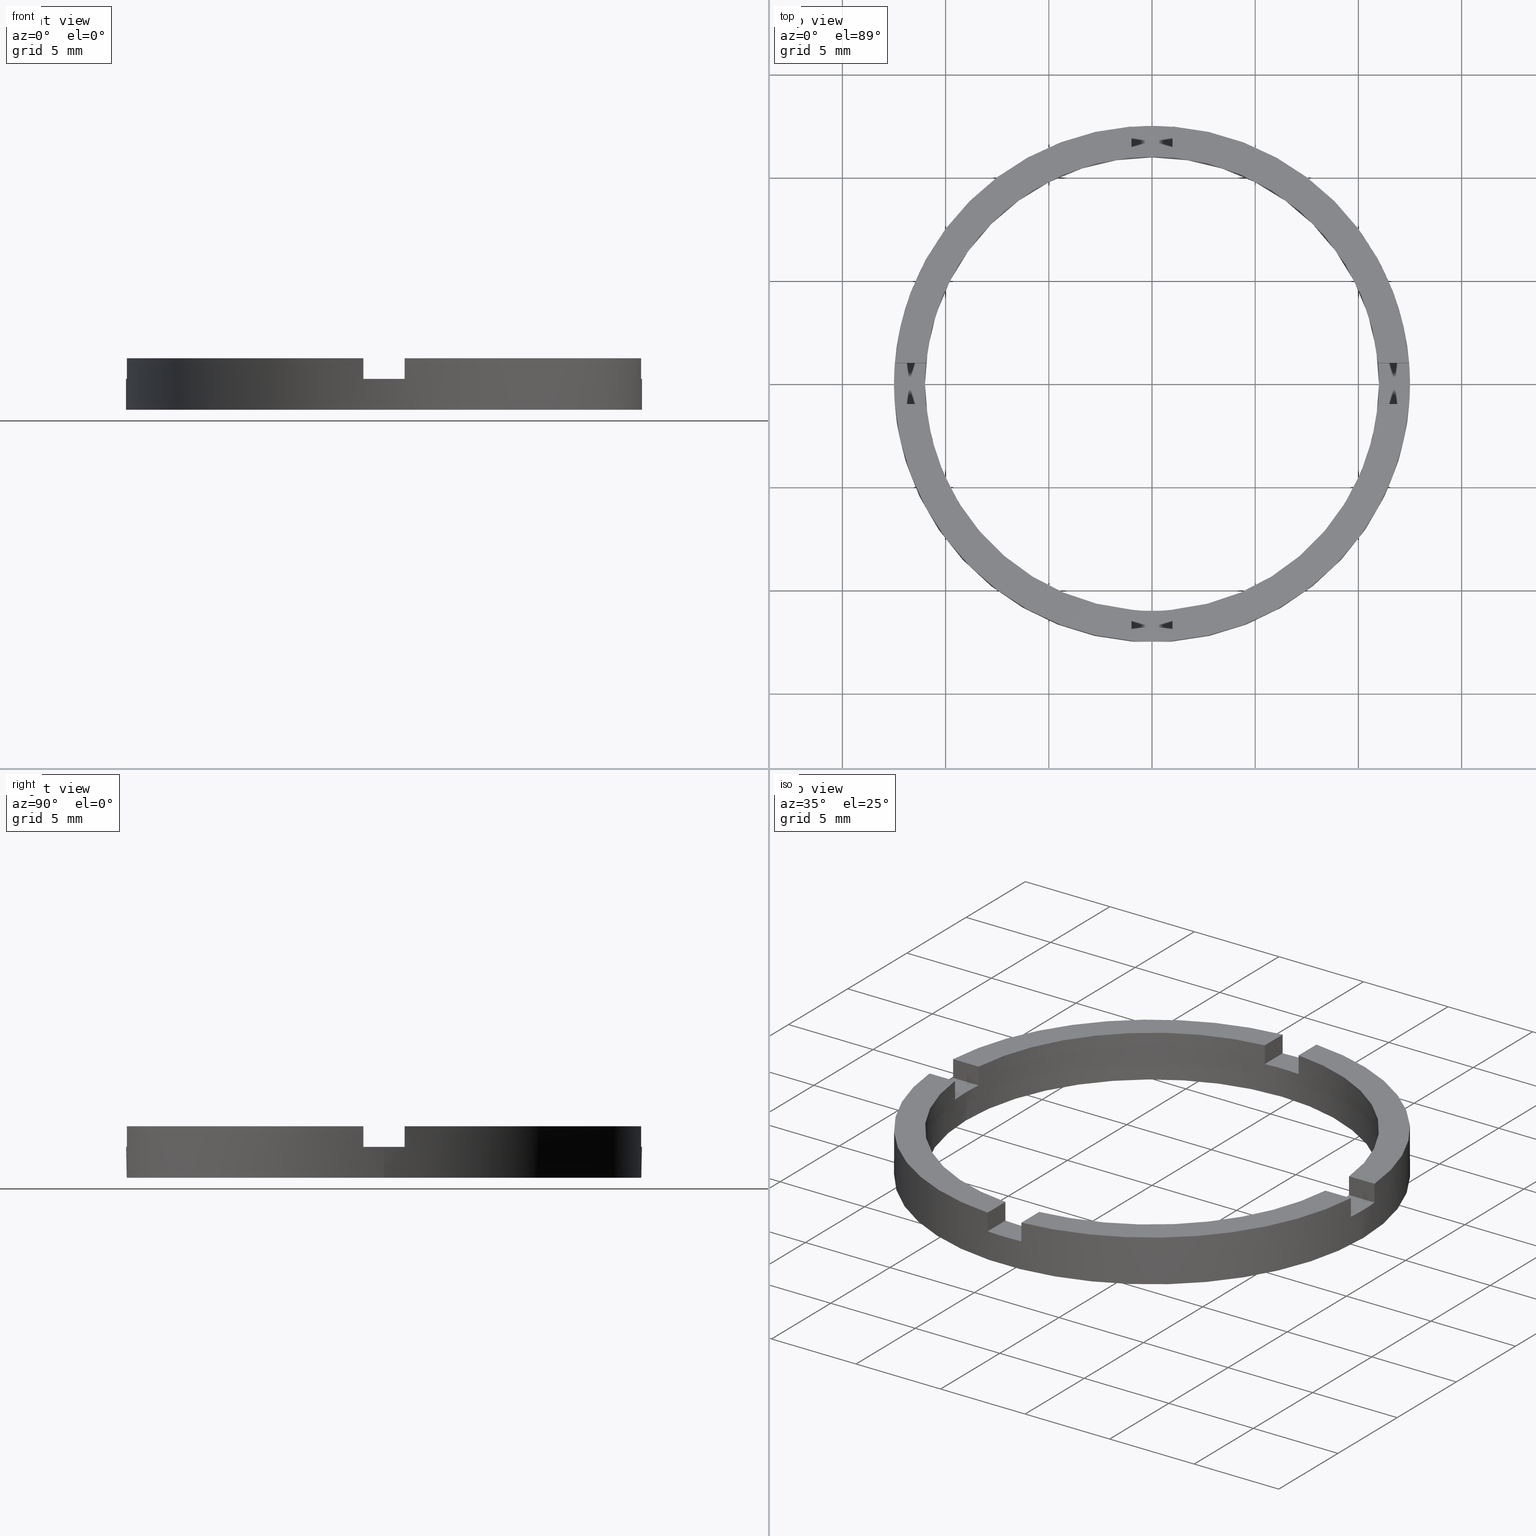
[diagram: canonical four-view strip — front | top / right | iso, engineering-drawing reading convention]
A machine part, canonical four-view strip (front | top / right | iso — engineering-drawing reading convention). The complete STEP part file that produces these views, byte-faithful:
ISO-10303-21;
HEADER;
FILE_DESCRIPTION (( 'STEP AP203' ),
    '1' );
FILE_NAME ('514057.step',
    '2024-12-26T02:33:26',
    ( 'MSI' ),
    ( '' ),
    'SwSTEP 2.0',
    'SolidWorks 2020',
    '' );
FILE_SCHEMA (( 'CONFIG_CONTROL_DESIGN' ));
ENDSEC;

DATA;
#1 = VERTEX_POINT ( 'NONE', #704 ) ;
#2 = DIRECTION ( 'NONE',  ( 1.000000000000000000, 0.000000000000000000, 0.000000000000000000 ) ) ;
#3 = ORIENTED_EDGE ( 'NONE', *, *, #521, .T. ) ;
#4 = CARTESIAN_POINT ( 'NONE',  ( 0.000000000000000000, 0.000000000000000000, 1.500000000000000000 ) ) ;
#5 = CARTESIAN_POINT ( 'NONE',  ( 0.000000000000000000, 0.000000000000000000, 2.500000000000000000 ) ) ;
#6 = EDGE_CURVE ( 'NONE', #419, #145, #127, .T. ) ;
#7 = DIRECTION ( 'NONE',  ( 1.000000000000000000, 0.000000000000000000, 0.000000000000000000 ) ) ;
#8 = DIRECTION ( 'NONE',  ( 1.000000000000000000, 0.000000000000000000, 0.000000000000000000 ) ) ;
#9 = CC_DESIGN_APPROVAL ( #268, ( #579 ) ) ;
#10 = CARTESIAN_POINT ( 'NONE',  ( 0.9999999999999754641, 10.95445115010332415, 2.500000000000000000 ) ) ;
#11 = ADVANCED_FACE ( 'NONE', ( #111 ), #330, .T. ) ;
#12 = CARTESIAN_POINT ( 'NONE',  ( -11.00000000000000000, 0.000000000000000000, 0.000000000000000000 ) ) ;
#13 = PERSON_AND_ORGANIZATION_ROLE ( 'creator' ) ;
#14 = CARTESIAN_POINT ( 'NONE',  ( -12.50000000000000000, 0.000000000000000000, 2.500000000000000000 ) ) ;
#15 = CARTESIAN_POINT ( 'NONE',  ( -10.95445115010332415, 0.9999999999999781286, 1.500000000000000000 ) ) ;
#16 = DIRECTION ( 'NONE',  ( 4.336808689942018352E-17, -1.000000000000000000, 0.000000000000000000 ) ) ;
#17 = EDGE_CURVE ( 'NONE', #233, #364, #672, .T. ) ;
#18 = DATE_TIME_ROLE ( 'classification_date' ) ;
#19 = CARTESIAN_POINT ( 'NONE',  ( -1.000000000000024425, 2.500000000000002220, 1.500000000000000000 ) ) ;
#20 = PERSON ( 'δָ��', 'δָ��', 'δָ��', ('δָ��'), ('δָ��'), ('δָ��') ) ;
#21 = VECTOR ( 'NONE', #69, 1000.000000000000000 ) ;
#22 = PLANE ( 'NONE',  #337 ) ;
#23 = PLANE ( 'NONE',  #696 ) ;
#24 = DIRECTION ( 'NONE',  ( 1.000000000000000000, 0.000000000000000000, -0.000000000000000000 ) ) ;
#25 = CARTESIAN_POINT ( 'NONE',  ( 0.000000000000000000, 0.000000000000000000, 2.500000000000000000 ) ) ;
#26 = EDGE_CURVE ( 'NONE', #216, #480, #639, .T. ) ;
#27 = EDGE_CURVE ( 'NONE', #173, #233, #423, .T. ) ;
#28 = DIRECTION ( 'NONE',  ( 0.000000000000000000, -0.000000000000000000, 1.000000000000000000 ) ) ;
#29 = AXIS2_PLACEMENT_3D ( 'NONE', #725, #247, #613 ) ;
#30 = CARTESIAN_POINT ( 'NONE',  ( 0.000000000000000000, 0.000000000000000000, 1.500000000000000000 ) ) ;
#31 = VECTOR ( 'NONE', #123, 1000.000000000000000 ) ;
#32 = LINE ( 'NONE', #449, #282 ) ;
#33 = CARTESIAN_POINT ( 'NONE',  ( 2.499999999999998668, -1.000000000000160316, 2.500000000000000000 ) ) ;
#34 = LINE ( 'NONE', #558, #21 ) ;
#35 = EDGE_CURVE ( 'NONE', #496, #732, #366, .T. ) ;
#36 = DIRECTION ( 'NONE',  ( -0.000000000000000000, -0.000000000000000000, -1.000000000000000000 ) ) ;
#37 = LINE ( 'NONE', #568, #541 ) ;
#38 = VECTOR ( 'NONE', #308, 1000.000000000000000 ) ;
#39 = VECTOR ( 'NONE', #258, 1000.000000000000000 ) ;
#40 = DIRECTION ( 'NONE',  ( 0.000000000000000000, 0.000000000000000000, 1.000000000000000000 ) ) ;
#41 = SECURITY_CLASSIFICATION ( '', '', #445 ) ;
#42 = FACE_OUTER_BOUND ( 'NONE', #442, .T. ) ;
#43 = DIRECTION ( 'NONE',  ( -0.000000000000000000, -0.000000000000000000, -1.000000000000000000 ) ) ;
#44 = VECTOR ( 'NONE', #190, 1000.000000000000000 ) ;
#45 = DIRECTION ( 'NONE',  ( 0.000000000000000000, -0.000000000000000000, 1.000000000000000000 ) ) ;
#46 = DIRECTION ( 'NONE',  ( 1.000000000000000000, 0.000000000000000000, 0.000000000000000000 ) ) ;
#47 = DIRECTION ( 'NONE',  ( -1.000000000000000000, -1.301042606982605567E-16, 0.000000000000000000 ) ) ;
#48 = DIRECTION ( 'NONE',  ( 1.000000000000000000, 0.000000000000000000, -0.000000000000000000 ) ) ;
#49 = DIRECTION ( 'NONE',  ( 1.000000000000000000, 0.000000000000000000, 0.000000000000000000 ) ) ;
#50 = CARTESIAN_POINT ( 'NONE',  ( 12.45993579437712739, 0.9999999999998402389, 2.500000000000000000 ) ) ;
#51 = PLANE ( 'NONE',  #29 ) ;
#52 = CARTESIAN_POINT ( 'NONE',  ( 0.9999999999998352429, -2.500000000000182521, 1.500000000000000000 ) ) ;
#53 = ADVANCED_FACE ( 'NONE', ( #134 ), #736, .F. ) ;
#54 = DIRECTION ( 'NONE',  ( 0.000000000000000000, 0.000000000000000000, 1.000000000000000000 ) ) ;
#55 = DIRECTION ( 'NONE',  ( 1.000000000000000000, 0.000000000000000000, 0.000000000000000000 ) ) ;
#56 = CARTESIAN_POINT ( 'NONE',  ( 0.000000000000000000, 0.000000000000000000, 0.000000000000000000 ) ) ;
#57 = EDGE_CURVE ( 'NONE', #160, #170, #633, .T. ) ;
#58 = DIRECTION ( 'NONE',  ( -1.000000000000000000, -1.734723475976807341E-16, 0.000000000000000000 ) ) ;
#59 = ADVANCED_FACE ( 'NONE', ( #430 ), #99, .T. ) ;
#60 = PERSON_AND_ORGANIZATION_ROLE ( 'design_supplier' ) ;
#61 = CARTESIAN_POINT ( 'NONE',  ( 12.50000000000000000, 1.530808498934191521E-15, 2.500000000000000000 ) ) ;
#62 = AXIS2_PLACEMENT_3D ( 'NONE', #5, #727, #8 ) ;
#63 = CARTESIAN_POINT ( 'NONE',  ( 10.95445115010330639, -1.000000000000159872, 2.500000000000000000 ) ) ;
#64 = PLANE ( 'NONE',  #347 ) ;
#65 = CARTESIAN_POINT ( 'NONE',  ( -11.00000000000000000, 0.000000000000000000, 2.500000000000000000 ) ) ;
#66 = CC_DESIGN_SECURITY_CLASSIFICATION ( #41, ( #579 ) ) ;
#67 = DIRECTION ( 'NONE',  ( -0.000000000000000000, -0.000000000000000000, -1.000000000000000000 ) ) ;
#68 = DIRECTION ( 'NONE',  ( 1.301042606982605567E-16, -1.000000000000000000, 0.000000000000000000 ) ) ;
#69 = DIRECTION ( 'NONE',  ( -1.000000000000000000, -1.734723475976807341E-16, 0.000000000000000000 ) ) ;
#70 = DIRECTION ( 'NONE',  ( -0.000000000000000000, -0.000000000000000000, -1.000000000000000000 ) ) ;
#71 = AXIS2_PLACEMENT_3D ( 'NONE', #306, #341, #645 ) ;
#72 = DIRECTION ( 'NONE',  ( -0.000000000000000000, -0.000000000000000000, -1.000000000000000000 ) ) ;
#73 = DIRECTION ( 'NONE',  ( 1.000000000000000000, 0.000000000000000000, 0.000000000000000000 ) ) ;
#74 = CARTESIAN_POINT ( 'NONE',  ( -12.45993579437711496, 0.9999999999999779066, 2.500000000000000000 ) ) ;
#75 = CARTESIAN_POINT ( 'NONE',  ( 0.000000000000000000, 0.000000000000000000, 1.500000000000000000 ) ) ;
#76 = CARTESIAN_POINT ( 'NONE',  ( 12.45993579437710075, -1.000000000000159872, 2.500000000000000000 ) ) ;
#77 = CARTESIAN_POINT ( 'NONE',  ( 2.499999999999998668, 0.9999999999998397948, 2.500000000000000000 ) ) ;
#78 = EDGE_CURVE ( 'NONE', #356, #507, #636, .T. ) ;
#79 = DIRECTION ( 'NONE',  ( 0.000000000000000000, 0.000000000000000000, 1.000000000000000000 ) ) ;
#80 = AXIS2_PLACEMENT_3D ( 'NONE', #4, #87, #7 ) ;
#81 = CARTESIAN_POINT ( 'NONE',  ( -10.95445115010332415, 0.9999999999999781286, 2.500000000000000000 ) ) ;
#82 = DIRECTION ( 'NONE',  ( 0.000000000000000000, 0.000000000000000000, 1.000000000000000000 ) ) ;
#83 = AXIS2_PLACEMENT_3D ( 'NONE', #578, #142, #694 ) ;
#84 = CARTESIAN_POINT ( 'NONE',  ( -12.50000000000000000, 0.000000000000000000, 1.500000000000000000 ) ) ;
#85 = EDGE_CURVE ( 'NONE', #699, #496, #657, .T. ) ;
#86 = CARTESIAN_POINT ( 'NONE',  ( -1.000000000000024425, 10.95445115010331882, 2.500000000000000000 ) ) ;
#87 = DIRECTION ( 'NONE',  ( 0.000000000000000000, 0.000000000000000000, 1.000000000000000000 ) ) ;
#88 = ADVANCED_FACE ( 'NONE', ( #162 ), #380, .F. ) ;
#89 = DIRECTION ( 'NONE',  ( -1.301042606982605567E-16, 1.000000000000000000, -0.000000000000000000 ) ) ;
#90 = AXIS2_PLACEMENT_3D ( 'NONE', #193, #343, #271 ) ;
#91 = DIRECTION ( 'NONE',  ( 1.000000000000000000, 0.000000000000000000, 0.000000000000000000 ) ) ;
#92 = ADVANCED_FACE ( 'NONE', ( #402 ), #601, .F. ) ;
#93 = DIRECTION ( 'NONE',  ( 1.000000000000000000, -0.000000000000000000, 0.000000000000000000 ) ) ;
#94 = CARTESIAN_POINT ( 'NONE',  ( 12.45993579437712739, 0.9999999999998402389, 1.500000000000000000 ) ) ;
#95 = EDGE_CURVE ( 'NONE', #145, #235, #653, .T. ) ;
#96 = CIRCLE ( 'NONE', #239, 11.00000000000000000 ) ;
#97 = PLANE ( 'NONE',  #303 ) ;
#98 = CIRCLE ( 'NONE', #122, 12.50000000000000000 ) ;
#99 = PLANE ( 'NONE',  #90 ) ;
#100 = AXIS2_PLACEMENT_3D ( 'NONE', #327, #335, #417 ) ;
#101 = APPROVAL_PERSON_ORGANIZATION ( #124, #182, #518 ) ;
#102 = CIRCLE ( 'NONE', #561, 11.00000000000000000 ) ;
#103 = DATE_AND_TIME ( #658, #363 ) ;
#104 = LINE ( 'NONE', #294, #365 ) ;
#105 = PERSON_AND_ORGANIZATION ( #20, #557 ) ;
#106 = VECTOR ( 'NONE', #290, 1000.000000000000000 ) ;
#107 = ORIENTED_EDGE ( 'NONE', *, *, #543, .F. ) ;
#108 = DIRECTION ( 'NONE',  ( 0.000000000000000000, 0.000000000000000000, 1.000000000000000000 ) ) ;
#109 = CALENDAR_DATE ( 2024, 26, 12 ) ;
#110 = LINE ( 'NONE', #223, #138 ) ;
#111 = FACE_OUTER_BOUND ( 'NONE', #764, .T. ) ;
#112 = DIRECTION ( 'NONE',  ( -0.000000000000000000, -1.000000000000000000, -0.000000000000000000 ) ) ;
#113 = EDGE_CURVE ( 'NONE', #187, #480, #660, .T. ) ;
#114 = CALENDAR_DATE ( 2024, 26, 12 ) ;
#115 = CIRCLE ( 'NONE', #605, 12.50000000000000000 ) ;
#116 = VECTOR ( 'NONE', #70, 1000.000000000000000 ) ;
#117 = APPROVAL_PERSON_ORGANIZATION ( #400, #498, #757 ) ;
#118 = VECTOR ( 'NONE', #43, 1000.000000000000000 ) ;
#119 = DIRECTION ( 'NONE',  ( 0.000000000000000000, 1.000000000000000000, 0.000000000000000000 ) ) ;
#120 = CARTESIAN_POINT ( 'NONE',  ( -2.500000000000186073, 0.9999999999999796829, 1.500000000000000000 ) ) ;
#121 = VECTOR ( 'NONE', #112, 1000.000000000000000 ) ;
#122 = AXIS2_PLACEMENT_3D ( 'NONE', #490, #79, #332 ) ;
#123 = DIRECTION ( 'NONE',  ( 1.000000000000000000, 4.336808689942018352E-17, 0.000000000000000000 ) ) ;
#124 = PERSON_AND_ORGANIZATION ( #20, #557 ) ;
#125 = LINE ( 'NONE', #626, #133 ) ;
#126 = CYLINDRICAL_SURFACE ( 'NONE', #712, 12.50000000000000000 ) ;
#127 = LINE ( 'NONE', #367, #393 ) ;
#128 = EDGE_CURVE ( 'NONE', #356, #768, #141, .T. ) ;
#129 = APPROVAL_PERSON_ORGANIZATION ( #105, #268, #562 ) ;
#130 = FACE_OUTER_BOUND ( 'NONE', #500, .T. ) ;
#131 = VERTEX_POINT ( 'NONE', #221 ) ;
#132 = COORDINATED_UNIVERSAL_TIME_OFFSET ( 8, 0, .AHEAD. ) ;
#133 = VECTOR ( 'NONE', #545, 1000.000000000000000 ) ;
#134 = FACE_OUTER_BOUND ( 'NONE', #516, .T. ) ;
#135 = COORDINATED_UNIVERSAL_TIME_OFFSET ( 8, 0, .AHEAD. ) ;
#136 = LINE ( 'NONE', #52, #404 ) ;
#137 = PERSON_AND_ORGANIZATION ( #20, #557 ) ;
#138 = VECTOR ( 'NONE', #407, 1000.000000000000000 ) ;
#139 = VECTOR ( 'NONE', #697, 1000.000000000000000 ) ;
#140 = VECTOR ( 'NONE', #286, 1000.000000000000000 ) ;
#141 = LINE ( 'NONE', #323, #155 ) ;
#142 = DIRECTION ( 'NONE',  ( -0.000000000000000000, -0.000000000000000000, -1.000000000000000000 ) ) ;
#143 = ORIENTED_EDGE ( 'NONE', *, *, #319, .F. ) ;
#144 = FACE_OUTER_BOUND ( 'NONE', #414, .T. ) ;
#145 = VERTEX_POINT ( 'NONE', #576 ) ;
#146 = CARTESIAN_POINT ( 'NONE',  ( 12.50000000000000000, 1.530808498934191521E-15, 1.500000000000000000 ) ) ;
#147 = AXIS2_PLACEMENT_3D ( 'NONE', #346, #16, #681 ) ;
#148 = LINE ( 'NONE', #713, #153 ) ;
#149 = CYLINDRICAL_SURFACE ( 'NONE', #83, 11.00000000000000000 ) ;
#150 = FACE_OUTER_BOUND ( 'NONE', #200, .T. ) ;
#151 = VECTOR ( 'NONE', #36, 1000.000000000000000 ) ;
#152 = VERTEX_POINT ( 'NONE', #606 ) ;
#153 = VECTOR ( 'NONE', #54, 1000.000000000000000 ) ;
#154 = VECTOR ( 'NONE', #349, 1000.000000000000000 ) ;
#155 = VECTOR ( 'NONE', #72, 1000.000000000000000 ) ;
#156 = ORIENTED_EDGE ( 'NONE', *, *, #283, .T. ) ;
#157 = CYLINDRICAL_SURFACE ( 'NONE', #261, 12.50000000000000000 ) ;
#158 = DIRECTION ( 'NONE',  ( 1.000000000000000000, 1.734723475976807341E-16, -0.000000000000000000 ) ) ;
#159 = ORIENTED_EDGE ( 'NONE', *, *, #608, .F. ) ;
#160 = VERTEX_POINT ( 'NONE', #146 ) ;
#161 = ORIENTED_EDGE ( 'NONE', *, *, #426, .F. ) ;
#162 = FACE_OUTER_BOUND ( 'NONE', #504, .T. ) ;
#163 = ORIENTED_EDGE ( 'NONE', *, *, #739, .F. ) ;
#164 = ORIENTED_EDGE ( 'NONE', *, *, #26, .F. ) ;
#165 = ORIENTED_EDGE ( 'NONE', *, *, #319, .T. ) ;
#166 = CARTESIAN_POINT ( 'NONE',  ( -1.000000000000163647, -12.45993579437710075, 2.500000000000000000 ) ) ;
#167 = ORIENTED_EDGE ( 'NONE', *, *, #701, .T. ) ;
#168 = EDGE_CURVE ( 'NONE', #452, #145, #405, .T. ) ;
#169 = CARTESIAN_POINT ( 'NONE',  ( 0.000000000000000000, 0.000000000000000000, 1.500000000000000000 ) ) ;
#170 = VERTEX_POINT ( 'NONE', #763 ) ;
#171 = VERTEX_POINT ( 'NONE', #607 ) ;
#172 = ORIENTED_EDGE ( 'NONE', *, *, #598, .F. ) ;
#173 = VERTEX_POINT ( 'NONE', #575 ) ;
#174 = DIRECTION ( 'NONE',  ( -1.301042606982605567E-16, 1.000000000000000000, 0.000000000000000000 ) ) ;
#175 = EDGE_CURVE ( 'NONE', #532, #649, #668, .T. ) ;
#176 = ORIENTED_EDGE ( 'NONE', *, *, #314, .T. ) ;
#177 = CARTESIAN_POINT ( 'NONE',  ( 0.9999999999998363531, -10.95445115010333659, 1.500000000000000000 ) ) ;
#178 = ADVANCED_FACE ( 'NONE', ( #642 ), #149, .F. ) ;
#179 = AXIS2_PLACEMENT_3D ( 'NONE', #299, #587, #583 ) ;
#180 = ORIENTED_EDGE ( 'NONE', *, *, #585, .T. ) ;
#181 = PLANE ( 'NONE',  #595 ) ;
#182 = APPROVAL ( #348, 'δָ��' ) ;
#183 = ORIENTED_EDGE ( 'NONE', *, *, #314, .F. ) ;
#184 = APPLICATION_CONTEXT ( 'configuration controlled 3d designs of mechanical parts and assemblies' ) ;
#185 = EDGE_CURVE ( 'NONE', #231, #409, #411, .T. ) ;
#186 = DIRECTION ( 'NONE',  ( -4.336808689942018352E-17, 1.000000000000000000, 0.000000000000000000 ) ) ;
#187 = VERTEX_POINT ( 'NONE', #220 ) ;
#188 = EDGE_LOOP ( 'NONE', ( #263, #470, #266, #714 ) ) ;
#189 = ADVANCED_FACE ( 'NONE', ( #416 ), #157, .T. ) ;
#190 = DIRECTION ( 'NONE',  ( -0.000000000000000000, -0.000000000000000000, -1.000000000000000000 ) ) ;
#191 = FACE_OUTER_BOUND ( 'NONE', #759, .T. ) ;
#192 = DIRECTION ( 'NONE',  ( 0.000000000000000000, 0.000000000000000000, 1.000000000000000000 ) ) ;
#193 = CARTESIAN_POINT ( 'NONE',  ( 0.000000000000000000, 0.000000000000000000, 1.500000000000000000 ) ) ;
#194 = CIRCLE ( 'NONE', #390, 12.50000000000000000 ) ;
#195 = ORIENTED_EDGE ( 'NONE', *, *, #17, .T. ) ;
#196 = VECTOR ( 'NONE', #158, 1000.000000000000000 ) ;
#197 = FACE_OUTER_BOUND ( 'NONE', #378, .T. ) ;
#198 = ORIENTED_EDGE ( 'NONE', *, *, #739, .T. ) ;
#199 = EDGE_CURVE ( 'NONE', #357, #507, #620, .T. ) ;
#200 = EDGE_LOOP ( 'NONE', ( #666, #237, #451, #164 ) ) ;
#201 = ORIENTED_EDGE ( 'NONE', *, *, #78, .F. ) ;
#202 = DIRECTION ( 'NONE',  ( 0.000000000000000000, 0.000000000000000000, 1.000000000000000000 ) ) ;
#203 = ORIENTED_EDGE ( 'NONE', *, *, #85, .F. ) ;
#204 = AXIS2_PLACEMENT_3D ( 'NONE', #265, #311, #345 ) ;
#205 = ORIENTED_EDGE ( 'NONE', *, *, #168, .T. ) ;
#206 = CARTESIAN_POINT ( 'NONE',  ( -1.000000000000024425, 10.95445115010331882, 1.500000000000000000 ) ) ;
#207 = ORIENTED_EDGE ( 'NONE', *, *, #307, .T. ) ;
#208 = CARTESIAN_POINT ( 'NONE',  ( 10.95445115010333659, 0.9999999999998402389, 2.500000000000000000 ) ) ;
#209 = DIRECTION ( 'NONE',  ( 0.000000000000000000, 0.000000000000000000, 1.000000000000000000 ) ) ;
#210 = ORIENTED_EDGE ( 'NONE', *, *, #622, .F. ) ;
#211 = EDGE_CURVE ( 'NONE', #171, #685, #659, .T. ) ;
#212 = ORIENTED_EDGE ( 'NONE', *, *, #128, .F. ) ;
#213 = DESIGN_CONTEXT ( 'detailed design', #433, 'design' ) ;
#214 = ORIENTED_EDGE ( 'NONE', *, *, #57, .T. ) ;
#215 = AXIS2_PLACEMENT_3D ( 'NONE', #289, #538, #48 ) ;
#216 = VERTEX_POINT ( 'NONE', #340 ) ;
#217 = ORIENTED_EDGE ( 'NONE', *, *, #352, .F. ) ;
#218 = CARTESIAN_POINT ( 'NONE',  ( 0.000000000000000000, 0.000000000000000000, 2.500000000000000000 ) ) ;
#219 = ORIENTED_EDGE ( 'NONE', *, *, #227, .T. ) ;
#220 = CARTESIAN_POINT ( 'NONE',  ( -1.000000000000163647, -10.95445115010330639, 2.500000000000000000 ) ) ;
#221 = CARTESIAN_POINT ( 'NONE',  ( 0.9999999999999754641, 10.95445115010332415, 1.500000000000000000 ) ) ;
#222 = ORIENTED_EDGE ( 'NONE', *, *, #274, .F. ) ;
#223 = CARTESIAN_POINT ( 'NONE',  ( -12.45993579437711141, -1.000000000000022204, 2.500000000000000000 ) ) ;
#224 = ORIENTED_EDGE ( 'NONE', *, *, #486, .T. ) ;
#225 = CARTESIAN_POINT ( 'NONE',  ( 0.000000000000000000, 0.000000000000000000, 1.500000000000000000 ) ) ;
#226 = CC_DESIGN_DATE_AND_TIME_ASSIGNMENT ( #630, #553, ( #278 ) ) ;
#227 = EDGE_CURVE ( 'NONE', #525, #756, #415, .T. ) ;
#228 = VERTEX_POINT ( 'NONE', #556 ) ;
#229 = ORIENTED_EDGE ( 'NONE', *, *, #503, .F. ) ;
#230 = PLANE ( 'NONE',  #215 ) ;
#231 = VERTEX_POINT ( 'NONE', #675 ) ;
#232 = DIRECTION ( 'NONE',  ( 0.000000000000000000, 0.000000000000000000, 1.000000000000000000 ) ) ;
#233 = VERTEX_POINT ( 'NONE', #63 ) ;
#234 = ORIENTED_EDGE ( 'NONE', *, *, #85, .T. ) ;
#235 = VERTEX_POINT ( 'NONE', #206 ) ;
#236 = CARTESIAN_POINT ( 'NONE',  ( -12.45993579437711496, 0.9999999999999779066, 1.500000000000000000 ) ) ;
#237 = ORIENTED_EDGE ( 'NONE', *, *, #570, .T. ) ;
#238 = CARTESIAN_POINT ( 'NONE',  ( 0.9999999999999754641, 12.45993579437711674, 1.500000000000000000 ) ) ;
#239 = AXIS2_PLACEMENT_3D ( 'NONE', #698, #232, #49 ) ;
#240 = ADVANCED_FACE ( 'NONE', ( #648 ), #22, .F. ) ;
#241 = ORIENTED_EDGE ( 'NONE', *, *, #284, .F. ) ;
#242 = ORIENTED_EDGE ( 'NONE', *, *, #175, .F. ) ;
#243 = DIRECTION ( 'NONE',  ( 0.000000000000000000, 0.000000000000000000, 1.000000000000000000 ) ) ;
#244 = PLANE ( 'NONE',  #410 ) ;
#245 = ORIENTED_EDGE ( 'NONE', *, *, #128, .T. ) ;
#246 = ORIENTED_EDGE ( 'NONE', *, *, #754, .F. ) ;
#247 = DIRECTION ( 'NONE',  ( -1.000000000000000000, 0.000000000000000000, 0.000000000000000000 ) ) ;
#248 = EDGE_CURVE ( 'NONE', #677, #152, #406, .T. ) ;
#249 = ADVANCED_FACE ( 'NONE', ( #373 ), #126, .T. ) ;
#250 = EDGE_CURVE ( 'NONE', #515, #464, #652, .T. ) ;
#251 = ORIENTED_EDGE ( 'NONE', *, *, #703, .F. ) ;
#252 = MECHANICAL_CONTEXT ( 'NONE', #184, 'mechanical' ) ;
#253 = CARTESIAN_POINT ( 'NONE',  ( 0.000000000000000000, 0.000000000000000000, 2.500000000000000000 ) ) ;
#254 = ORIENTED_EDGE ( 'NONE', *, *, #585, .F. ) ;
#255 = ORIENTED_EDGE ( 'NONE', *, *, #592, .F. ) ;
#256 = DIRECTION ( 'NONE',  ( -0.000000000000000000, -0.000000000000000000, -1.000000000000000000 ) ) ;
#257 = ORIENTED_EDGE ( 'NONE', *, *, #211, .F. ) ;
#258 = DIRECTION ( 'NONE',  ( -0.000000000000000000, -1.000000000000000000, -0.000000000000000000 ) ) ;
#259 = VERTEX_POINT ( 'NONE', #443 ) ;
#260 = CARTESIAN_POINT ( 'NONE',  ( 10.95445115010330639, -1.000000000000159872, 1.500000000000000000 ) ) ;
#261 = AXIS2_PLACEMENT_3D ( 'NONE', #324, #770, #458 ) ;
#262 = ADVANCED_FACE ( 'NONE', ( #130 ), #760, .T. ) ;
#263 = ORIENTED_EDGE ( 'NONE', *, *, #17, .F. ) ;
#264 = DIRECTION ( 'NONE',  ( 1.000000000000000000, 1.734723475976807341E-16, 0.000000000000000000 ) ) ;
#265 = CARTESIAN_POINT ( 'NONE',  ( 0.000000000000000000, 0.000000000000000000, 0.000000000000000000 ) ) ;
#266 = ORIENTED_EDGE ( 'NONE', *, *, #537, .F. ) ;
#267 = ORIENTED_EDGE ( 'NONE', *, *, #724, .F. ) ;
#268 = APPROVAL ( #669, 'δָ��' ) ;
#269 = AXIS2_PLACEMENT_3D ( 'NONE', #662, #186, #748 ) ;
#270 =( LENGTH_UNIT ( ) NAMED_UNIT ( * ) SI_UNIT ( .MILLI., .METRE. ) );
#271 = DIRECTION ( 'NONE',  ( 1.000000000000000000, 0.000000000000000000, -0.000000000000000000 ) ) ;
#272 = DIRECTION ( 'NONE',  ( 1.734723475976807341E-16, -1.000000000000000000, 0.000000000000000000 ) ) ;
#273 = CARTESIAN_POINT ( 'NONE',  ( 0.000000000000000000, 0.000000000000000000, 2.500000000000000000 ) ) ;
#274 = EDGE_CURVE ( 'NONE', #677, #480, #674, .T. ) ;
#275 = CARTESIAN_POINT ( 'NONE',  ( -1.000000000000024425, 10.95445115010331882, 2.500000000000000000 ) ) ;
#276 = DIRECTION ( 'NONE',  ( 0.000000000000000000, 0.000000000000000000, 1.000000000000000000 ) ) ;
#277 = AXIS2_PLACEMENT_3D ( 'NONE', #297, #336, #55 ) ;
#278 = PRODUCT_DEFINITION ( 'δ֪', '', #579, #213 ) ;
#279 = LINE ( 'NONE', #508, #31 ) ;
#280 = CARTESIAN_POINT ( 'NONE',  ( -1.000000000000163647, -12.45993579437710075, 2.500000000000000000 ) ) ;
#281 = CARTESIAN_POINT ( 'NONE',  ( -1.000000000000164757, -2.500000000000182521, 1.500000000000000000 ) ) ;
#282 = VECTOR ( 'NONE', #597, 1000.000000000000000 ) ;
#283 = EDGE_CURVE ( 'NONE', #409, #464, #136, .T. ) ;
#284 = EDGE_CURVE ( 'NONE', #752, #171, #671, .T. ) ;
#285 = PLANE ( 'NONE',  #100 ) ;
#286 = DIRECTION ( 'NONE',  ( -0.000000000000000000, -0.000000000000000000, -1.000000000000000000 ) ) ;
#287 = MANIFOLD_SOLID_BREP ( '�г�-����1', #530 ) ;
#288 = AXIS2_PLACEMENT_3D ( 'NONE', #778, #631, #394 ) ;
#289 = CARTESIAN_POINT ( 'NONE',  ( 0.000000000000000000, 0.000000000000000000, 2.500000000000000000 ) ) ;
#290 = DIRECTION ( 'NONE',  ( -1.301042606982605567E-16, 1.000000000000000000, -0.000000000000000000 ) ) ;
#291 = LINE ( 'NONE', #735, #555 ) ;
#292 = FACE_OUTER_BOUND ( 'NONE', #188, .T. ) ;
#293 = EDGE_CURVE ( 'NONE', #231, #364, #398, .T. ) ;
#294 = CARTESIAN_POINT ( 'NONE',  ( 12.45993579437710075, -1.000000000000159872, 2.500000000000000000 ) ) ;
#295 = DIRECTION ( 'NONE',  ( 0.000000000000000000, 0.000000000000000000, 1.000000000000000000 ) ) ;
#296 = LINE ( 'NONE', #448, #44 ) ;
#297 = CARTESIAN_POINT ( 'NONE',  ( 0.000000000000000000, 0.000000000000000000, 1.500000000000000000 ) ) ;
#298 = LINE ( 'NONE', #596, #565 ) ;
#299 = CARTESIAN_POINT ( 'NONE',  ( 0.000000000000000000, 0.000000000000000000, 1.500000000000000000 ) ) ;
#300 = LINE ( 'NONE', #120, #302 ) ;
#301 = CARTESIAN_POINT ( 'NONE',  ( 0.9999999999998352429, -2.500000000000182521, 2.500000000000000000 ) ) ;
#302 = VECTOR ( 'NONE', #58, 1000.000000000000000 ) ;
#303 = AXIS2_PLACEMENT_3D ( 'NONE', #56, #192, #342 ) ;
#304 = CARTESIAN_POINT ( 'NONE',  ( -10.95445115010331882, -1.000000000000021982, 1.500000000000000000 ) ) ;
#305 = ADVANCED_FACE ( 'NONE', ( #150 ), #765, .F. ) ;
#306 = CARTESIAN_POINT ( 'NONE',  ( 0.000000000000000000, 0.000000000000000000, 2.500000000000000000 ) ) ;
#307 = EDGE_CURVE ( 'NONE', #160, #768, #388, .T. ) ;
#308 = DIRECTION ( 'NONE',  ( -1.000000000000000000, -4.336808689942018352E-17, -0.000000000000000000 ) ) ;
#309 = ADVANCED_BREP_SHAPE_REPRESENTATION ( '514057', ( #287, #204 ), #777 ) ;
#310 = CARTESIAN_POINT ( 'NONE',  ( 0.000000000000000000, 0.000000000000000000, 2.500000000000000000 ) ) ;
#311 = DIRECTION ( 'NONE',  ( 0.000000000000000000, 0.000000000000000000, 1.000000000000000000 ) ) ;
#312 = CARTESIAN_POINT ( 'NONE',  ( 11.00000000000000000, 1.347111479062088405E-15, 2.500000000000000000 ) ) ;
#313 = DIRECTION ( 'NONE',  ( -0.000000000000000000, -0.000000000000000000, -1.000000000000000000 ) ) ;
#314 = EDGE_CURVE ( 'NONE', #173, #464, #392, .T. ) ;
#315 = CARTESIAN_POINT ( 'NONE',  ( -12.50000000000000000, 0.000000000000000000, 0.000000000000000000 ) ) ;
#316 = CARTESIAN_POINT ( 'NONE',  ( -1.000000000000164757, -2.500000000000182521, 2.500000000000000000 ) ) ;
#317 = AXIS2_PLACEMENT_3D ( 'NONE', #493, #548, #544 ) ;
#318 = PRODUCT_RELATED_PRODUCT_CATEGORY ( 'detail', '', ( #462 ) ) ;
#319 = EDGE_CURVE ( 'NONE', #677, #1, #110, .T. ) ;
#320 = DIRECTION ( 'NONE',  ( 1.000000000000000000, 0.000000000000000000, 0.000000000000000000 ) ) ;
#321 = PRODUCT_DEFINITION_SHAPE ( 'NONE', 'NONE',  #278 ) ;
#322 = UNCERTAINTY_MEASURE_WITH_UNIT (LENGTH_MEASURE( 1.000000000000000082E-05 ), #270, 'distance_accuracy_value', 'NONE');
#323 = CARTESIAN_POINT ( 'NONE',  ( 12.45993579437712739, 0.9999999999998402389, 2.500000000000000000 ) ) ;
#324 = CARTESIAN_POINT ( 'NONE',  ( 0.000000000000000000, 0.000000000000000000, 2.500000000000000000 ) ) ;
#325 = EDGE_CURVE ( 'NONE', #228, #160, #664, .T. ) ;
#326 = DIRECTION ( 'NONE',  ( 1.000000000000000000, 0.000000000000000000, 0.000000000000000000 ) ) ;
#327 = CARTESIAN_POINT ( 'NONE',  ( -2.500000000000186073, 0.9999999999999796829, 1.500000000000000000 ) ) ;
#328 = PLANE ( 'NONE',  #744 ) ;
#329 = EDGE_CURVE ( 'NONE', #444, #235, #632, .T. ) ;
#330 = PLANE ( 'NONE',  #762 ) ;
#331 = CARTESIAN_POINT ( 'NONE',  ( -1.000000000000163647, -10.95445115010330639, 2.500000000000000000 ) ) ;
#332 = DIRECTION ( 'NONE',  ( 1.000000000000000000, 0.000000000000000000, 0.000000000000000000 ) ) ;
#333 = CARTESIAN_POINT ( 'NONE',  ( 0.9999999999998352429, -2.500000000000182521, 1.500000000000000000 ) ) ;
#334 = ADVANCED_FACE ( 'NONE', ( #641 ), #328, .T. ) ;
#335 = DIRECTION ( 'NONE',  ( -1.734723475976807341E-16, 1.000000000000000000, 0.000000000000000000 ) ) ;
#336 = DIRECTION ( 'NONE',  ( 0.000000000000000000, 0.000000000000000000, 1.000000000000000000 ) ) ;
#337 = AXIS2_PLACEMENT_3D ( 'NONE', #506, #272, #264 ) ;
#338 = DIRECTION ( 'NONE',  ( 0.000000000000000000, 0.000000000000000000, 1.000000000000000000 ) ) ;
#339 = PERSON_AND_ORGANIZATION_ROLE ( 'design_owner' ) ;
#340 = CARTESIAN_POINT ( 'NONE',  ( -1.000000000000163647, -12.45993579437710075, 1.500000000000000000 ) ) ;
#341 = DIRECTION ( 'NONE',  ( 0.000000000000000000, 0.000000000000000000, 1.000000000000000000 ) ) ;
#342 = DIRECTION ( 'NONE',  ( 1.000000000000000000, 0.000000000000000000, -0.000000000000000000 ) ) ;
#343 = DIRECTION ( 'NONE',  ( 0.000000000000000000, 0.000000000000000000, 1.000000000000000000 ) ) ;
#344 = CARTESIAN_POINT ( 'NONE',  ( 0.000000000000000000, 0.000000000000000000, 1.500000000000000000 ) ) ;
#345 = DIRECTION ( 'NONE',  ( 1.000000000000000000, 0.000000000000000000, 0.000000000000000000 ) ) ;
#346 = CARTESIAN_POINT ( 'NONE',  ( 2.499999999999998668, -1.000000000000160316, 1.500000000000000000 ) ) ;
#347 = AXIS2_PLACEMENT_3D ( 'NONE', #524, #202, #24 ) ;
#348 = APPROVAL_STATUS ( 'not_yet_approved' ) ;
#349 = DIRECTION ( 'NONE',  ( 1.301042606982605567E-16, -1.000000000000000000, 0.000000000000000000 ) ) ;
#350 = DIRECTION ( 'NONE',  ( 1.000000000000000000, 0.000000000000000000, 0.000000000000000000 ) ) ;
#351 = EDGE_LOOP ( 'NONE', ( #670, #207, #167, #682, #203, #460 ) ) ;
#352 = EDGE_CURVE ( 'NONE', #756, #170, #115, .T. ) ;
#353 = CARTESIAN_POINT ( 'NONE',  ( 11.00000000000000000, 1.347111479062088405E-15, 0.000000000000000000 ) ) ;
#354 = CARTESIAN_POINT ( 'NONE',  ( 0.000000000000000000, 0.000000000000000000, 2.500000000000000000 ) ) ;
#355 = AXIS2_PLACEMENT_3D ( 'NONE', #344, #564, #350 ) ;
#356 = VERTEX_POINT ( 'NONE', #50 ) ;
#357 = VERTEX_POINT ( 'NONE', #10 ) ;
#358 = CIRCLE ( 'NONE', #655, 11.00000000000000000 ) ;
#359 = CARTESIAN_POINT ( 'NONE',  ( 0.9999999999998363531, -12.45993579437712739, 2.500000000000000000 ) ) ;
#360 = LINE ( 'NONE', #77, #617 ) ;
#361 = LOCAL_TIME ( 10, 33, 26.00000000000000000, #391 ) ;
#362 = VECTOR ( 'NONE', #540, 1000.000000000000000 ) ;
#363 = LOCAL_TIME ( 10, 33, 26.00000000000000000, #135 ) ;
#364 = VERTEX_POINT ( 'NONE', #76 ) ;
#365 = VECTOR ( 'NONE', #40, 1000.000000000000000 ) ;
#366 = LINE ( 'NONE', #312, #374 ) ;
#367 = CARTESIAN_POINT ( 'NONE',  ( -1.000000000000024425, 12.45993579437711141, 2.500000000000000000 ) ) ;
#368 = LOCAL_TIME ( 10, 33, 26.00000000000000000, #654 ) ;
#369 = CIRCLE ( 'NONE', #80, 11.00000000000000000 ) ;
#370 = ORIENTED_EDGE ( 'NONE', *, *, #690, .T. ) ;
#371 = CC_DESIGN_PERSON_AND_ORGANIZATION_ASSIGNMENT ( #638, #60, ( #579 ) ) ;
#372 = LOCAL_TIME ( 10, 33, 26.00000000000000000, #627 ) ;
#373 = FACE_OUTER_BOUND ( 'NONE', #700, .T. ) ;
#374 = VECTOR ( 'NONE', #519, 1000.000000000000000 ) ;
#375 = EDGE_CURVE ( 'NONE', #532, #525, #663, .T. ) ;
#376 = DATE_AND_TIME ( #114, #372 ) ;
#377 = LINE ( 'NONE', #331, #628 ) ;
#378 = EDGE_LOOP ( 'NONE', ( #774, #523, #421, #242 ) ) ;
#379 = LINE ( 'NONE', #705, #196 ) ;
#380 = CYLINDRICAL_SURFACE ( 'NONE', #580, 11.00000000000000000 ) ;
#381 = DIRECTION ( 'NONE',  ( 1.000000000000000000, 0.000000000000000000, 0.000000000000000000 ) ) ;
#382 = PERSON_AND_ORGANIZATION ( #20, #557 ) ;
#383 = VECTOR ( 'NONE', #256, 1000.000000000000000 ) ;
#384 = VECTOR ( 'NONE', #276, 1000.000000000000000 ) ;
#385 = SHAPE_DEFINITION_REPRESENTATION ( #321, #309 ) ;
#386 = VECTOR ( 'NONE', #119, 1000.000000000000000 ) ;
#387 = EDGE_LOOP ( 'NONE', ( #693, #389, #180, #107, #241, #370 ) ) ;
#388 = CIRCLE ( 'NONE', #572, 12.50000000000000000 ) ;
#389 = ORIENTED_EDGE ( 'NONE', *, *, #467, .T. ) ;
#390 = AXIS2_PLACEMENT_3D ( 'NONE', #718, #610, #547 ) ;
#391 = COORDINATED_UNIVERSAL_TIME_OFFSET ( 8, 0, .AHEAD. ) ;
#392 = LINE ( 'NONE', #396, #118 ) ;
#393 = VECTOR ( 'NONE', #769, 1000.000000000000000 ) ;
#394 = DIRECTION ( 'NONE',  ( 1.000000000000000000, 0.000000000000000000, 0.000000000000000000 ) ) ;
#395 = DATE_AND_TIME ( #644, #623 ) ;
#396 = CARTESIAN_POINT ( 'NONE',  ( 0.9999999999998363531, -10.95445115010333659, 2.500000000000000000 ) ) ;
#397 = PERSON_AND_ORGANIZATION ( #20, #557 ) ;
#398 = CIRCLE ( 'NONE', #317, 12.50000000000000000 ) ;
#399 = ORIENTED_EDGE ( 'NONE', *, *, #185, .F. ) ;
#400 = PERSON_AND_ORGANIZATION ( #20, #557 ) ;
#401 = CIRCLE ( 'NONE', #469, 11.00000000000000000 ) ;
#402 = FACE_OUTER_BOUND ( 'NONE', #629, .T. ) ;
#403 = EDGE_CURVE ( 'NONE', #444, #259, #401, .T. ) ;
#404 = VECTOR ( 'NONE', #89, 1000.000000000000000 ) ;
#405 = CIRCLE ( 'NONE', #678, 12.50000000000000000 ) ;
#406 = LINE ( 'NONE', #751, #667 ) ;
#407 = DIRECTION ( 'NONE',  ( -0.000000000000000000, -0.000000000000000000, -1.000000000000000000 ) ) ;
#408 = FACE_OUTER_BOUND ( 'NONE', #740, .T. ) ;
#409 = VERTEX_POINT ( 'NONE', #594 ) ;
#410 = AXIS2_PLACEMENT_3D ( 'NONE', #225, #45, #477 ) ;
#411 = LINE ( 'NONE', #359, #151 ) ;
#412 = CARTESIAN_POINT ( 'NONE',  ( 0.000000000000000000, 0.000000000000000000, 1.500000000000000000 ) ) ;
#413 = CC_DESIGN_PERSON_AND_ORGANIZATION_ASSIGNMENT ( #137, #511, ( #278 ) ) ;
#414 = EDGE_LOOP ( 'NONE', ( #205, #728, #468, #198 ) ) ;
#415 = LINE ( 'NONE', #14, #635 ) ;
#416 = FACE_OUTER_BOUND ( 'NONE', #738, .T. ) ;
#417 = DIRECTION ( 'NONE',  ( -1.000000000000000000, -1.734723475976807341E-16, 0.000000000000000000 ) ) ;
#418 = FACE_OUTER_BOUND ( 'NONE', #723, .T. ) ;
#419 = VERTEX_POINT ( 'NONE', #782 ) ;
#420 = ADVANCED_FACE ( 'NONE', ( #144 ), #244, .T. ) ;
#421 = ORIENTED_EDGE ( 'NONE', *, *, #754, .T. ) ;
#422 = ORIENTED_EDGE ( 'NONE', *, *, #647, .T. ) ;
#423 = CIRCLE ( 'NONE', #549, 11.00000000000000000 ) ;
#424 = EDGE_CURVE ( 'NONE', #170, #756, #98, .T. ) ;
#425 = CARTESIAN_POINT ( 'NONE',  ( 0.000000000000000000, 0.000000000000000000, 2.500000000000000000 ) ) ;
#426 = EDGE_CURVE ( 'NONE', #699, #233, #125, .T. ) ;
#427 = ORIENTED_EDGE ( 'NONE', *, *, #766, .F. ) ;
#428 = VECTOR ( 'NONE', #582, 1000.000000000000000 ) ;
#429 = DIRECTION ( 'NONE',  ( 1.000000000000000000, 1.301042606982605567E-16, 0.000000000000000000 ) ) ;
#430 = FACE_OUTER_BOUND ( 'NONE', #351, .T. ) ;
#431 = AXIS2_PLACEMENT_3D ( 'NONE', #30, #586, #73 ) ;
#432 = ORIENTED_EDGE ( 'NONE', *, *, #766, .T. ) ;
#433 = APPLICATION_CONTEXT ( 'configuration controlled 3d designs of mechanical parts and assemblies' ) ;
#434 = ORIENTED_EDGE ( 'NONE', *, *, #78, .T. ) ;
#435 = DIRECTION ( 'NONE',  ( 1.000000000000000000, 0.000000000000000000, 0.000000000000000000 ) ) ;
#436 = ADVANCED_FACE ( 'NONE', ( #408 ), #230, .T. ) ;
#437 = ORIENTED_EDGE ( 'NONE', *, *, #503, .T. ) ;
#438 = AXIS2_PLACEMENT_3D ( 'NONE', #354, #441, #455 ) ;
#439 = ORIENTED_EDGE ( 'NONE', *, *, #703, .T. ) ;
#440 = ORIENTED_EDGE ( 'NONE', *, *, #35, .F. ) ;
#441 = DIRECTION ( 'NONE',  ( 0.000000000000000000, 0.000000000000000000, 1.000000000000000000 ) ) ;
#442 = EDGE_LOOP ( 'NONE', ( #163, #437, #684, #689 ) ) ;
#443 = CARTESIAN_POINT ( 'NONE',  ( -10.95445115010332415, 0.9999999999999781286, 2.500000000000000000 ) ) ;
#444 = VERTEX_POINT ( 'NONE', #86 ) ;
#445 = SECURITY_CLASSIFICATION_LEVEL ( 'unclassified' ) ;
#446 = ORIENTED_EDGE ( 'NONE', *, *, #591, .T. ) ;
#447 = DIRECTION ( 'NONE',  ( 1.000000000000000000, 1.734723475976807341E-16, -0.000000000000000000 ) ) ;
#448 = CARTESIAN_POINT ( 'NONE',  ( 10.95445115010333659, 0.9999999999998402389, 2.500000000000000000 ) ) ;
#449 = CARTESIAN_POINT ( 'NONE',  ( 0.9999999999999754641, 12.45993579437711674, 2.500000000000000000 ) ) ;
#450 = ORIENTED_EDGE ( 'NONE', *, *, #403, .F. ) ;
#451 = ORIENTED_EDGE ( 'NONE', *, *, #113, .T. ) ;
#452 = VERTEX_POINT ( 'NONE', #238 ) ;
#453 = ORIENTED_EDGE ( 'NONE', *, *, #250, .T. ) ;
#454 = DIRECTION ( 'NONE',  ( -0.000000000000000000, -0.000000000000000000, -1.000000000000000000 ) ) ;
#455 = DIRECTION ( 'NONE',  ( 1.000000000000000000, 0.000000000000000000, 0.000000000000000000 ) ) ;
#456 = ORIENTED_EDGE ( 'NONE', *, *, #514, .F. ) ;
#457 = CIRCLE ( 'NONE', #288, 11.00000000000000000 ) ;
#458 = DIRECTION ( 'NONE',  ( -1.000000000000000000, 0.000000000000000000, 0.000000000000000000 ) ) ;
#459 = EDGE_CURVE ( 'NONE', #131, #235, #102, .T. ) ;
#460 = ORIENTED_EDGE ( 'NONE', *, *, #724, .T. ) ;
#461 = ORIENTED_EDGE ( 'NONE', *, *, #592, .T. ) ;
#462 = PRODUCT ( '514057', '514057', '', ( #252 ) ) ;
#463 = ORIENTED_EDGE ( 'NONE', *, *, #6, .F. ) ;
#464 = VERTEX_POINT ( 'NONE', #177 ) ;
#465 = ORIENTED_EDGE ( 'NONE', *, *, #248, .F. ) ;
#466 = ORIENTED_EDGE ( 'NONE', *, *, #426, .T. ) ;
#467 = EDGE_CURVE ( 'NONE', #525, #1, #665, .T. ) ;
#468 = ORIENTED_EDGE ( 'NONE', *, *, #459, .F. ) ;
#469 = AXIS2_PLACEMENT_3D ( 'NONE', #425, #295, #497 ) ;
#470 = ORIENTED_EDGE ( 'NONE', *, *, #27, .F. ) ;
#471 = DIRECTION ( 'NONE',  ( 1.000000000000000000, 0.000000000000000000, 0.000000000000000000 ) ) ;
#472 = CC_DESIGN_PERSON_AND_ORGANIZATION_ASSIGNMENT ( #397, #747, ( #41 ) ) ;
#473 = CARTESIAN_POINT ( 'NONE',  ( 0.000000000000000000, 0.000000000000000000, 1.500000000000000000 ) ) ;
#474 = ORIENTED_EDGE ( 'NONE', *, *, #274, .T. ) ;
#475 = EDGE_LOOP ( 'NONE', ( #234, #482, #255, #257, #707, #427, #446, #781, #453, #183, #489, #161 ) ) ;
#476 = ORIENTED_EDGE ( 'NONE', *, *, #95, .F. ) ;
#477 = DIRECTION ( 'NONE',  ( 1.000000000000000000, 0.000000000000000000, -0.000000000000000000 ) ) ;
#478 = ORIENTED_EDGE ( 'NONE', *, *, #424, .F. ) ;
#479 = CARTESIAN_POINT ( 'NONE',  ( 0.000000000000000000, 0.000000000000000000, 0.000000000000000000 ) ) ;
#480 = VERTEX_POINT ( 'NONE', #166 ) ;
#481 = ORIENTED_EDGE ( 'NONE', *, *, #6, .T. ) ;
#482 = ORIENTED_EDGE ( 'NONE', *, *, #35, .T. ) ;
#483 = ORIENTED_EDGE ( 'NONE', *, *, #403, .T. ) ;
#484 = DIRECTION ( 'NONE',  ( -0.000000000000000000, 0.000000000000000000, 1.000000000000000000 ) ) ;
#485 = ORIENTED_EDGE ( 'NONE', *, *, #535, .T. ) ;
#486 = EDGE_CURVE ( 'NONE', #496, #771, #358, .T. ) ;
#487 = ORIENTED_EDGE ( 'NONE', *, *, #459, .T. ) ;
#488 = EDGE_LOOP ( 'NONE', ( #217, #478 ) ) ;
#489 = ORIENTED_EDGE ( 'NONE', *, *, #27, .T. ) ;
#490 = CARTESIAN_POINT ( 'NONE',  ( 0.000000000000000000, 0.000000000000000000, 0.000000000000000000 ) ) ;
#491 = EDGE_LOOP ( 'NONE', ( #625, #432, #254, #143 ) ) ;
#492 = PLANE ( 'NONE',  #733 ) ;
#493 = CARTESIAN_POINT ( 'NONE',  ( 0.000000000000000000, 0.000000000000000000, 2.500000000000000000 ) ) ;
#494 = ORIENTED_EDGE ( 'NONE', *, *, #325, .F. ) ;
#495 = ORIENTED_EDGE ( 'NONE', *, *, #307, .F. ) ;
#496 = VERTEX_POINT ( 'NONE', #534 ) ;
#497 = DIRECTION ( 'NONE',  ( 1.000000000000000000, 0.000000000000000000, 0.000000000000000000 ) ) ;
#498 = APPROVAL ( #650, 'δָ��' ) ;
#499 = ORIENTED_EDGE ( 'NONE', *, *, #531, .F. ) ;
#500 = EDGE_LOOP ( 'NONE', ( #159, #702, #246, #450 ) ) ;
#501 = APPLICATION_PROTOCOL_DEFINITION ( 'international standard', 'config_control_design', 1994, #433 ) ;
#502 = EDGE_LOOP ( 'NONE', ( #461, #3 ) ) ;
#503 = EDGE_CURVE ( 'NONE', #131, #357, #148, .T. ) ;
#504 = EDGE_LOOP ( 'NONE', ( #440, #224, #683, #439, #229, #487, #734, #483, #499, #687, #679, #673 ) ) ;
#505 = ADVANCED_FACE ( 'NONE', ( #418 ), #51, .F. ) ;
#506 = CARTESIAN_POINT ( 'NONE',  ( -2.500000000000186073, -1.000000000000020428, 1.500000000000000000 ) ) ;
#507 = VERTEX_POINT ( 'NONE', #542 ) ;
#508 = CARTESIAN_POINT ( 'NONE',  ( 2.499999999999998668, -1.000000000000160316, 1.500000000000000000 ) ) ;
#509 = ORIENTED_EDGE ( 'NONE', *, *, #375, .F. ) ;
#510 = DIRECTION ( 'NONE',  ( -0.000000000000000000, -0.000000000000000000, -1.000000000000000000 ) ) ;
#511 = PERSON_AND_ORGANIZATION_ROLE ( 'creator' ) ;
#512 = ORIENTED_EDGE ( 'NONE', *, *, #598, .T. ) ;
#513 = DIRECTION ( 'NONE',  ( 1.000000000000000000, 0.000000000000000000, 0.000000000000000000 ) ) ;
#514 = EDGE_CURVE ( 'NONE', #356, #691, #360, .T. ) ;
#515 = VERTEX_POINT ( 'NONE', #584 ) ;
#516 = EDGE_LOOP ( 'NONE', ( #267, #466, #195, #729 ) ) ;
#517 = EDGE_LOOP ( 'NONE', ( #512, #156, #646, #688 ) ) ;
#518 = APPROVAL_ROLE ( '' ) ;
#519 = DIRECTION ( 'NONE',  ( -0.000000000000000000, -0.000000000000000000, -1.000000000000000000 ) ) ;
#520 = CC_DESIGN_DATE_AND_TIME_ASSIGNMENT ( #640, #18, ( #41 ) ) ;
#521 = EDGE_CURVE ( 'NONE', #732, #685, #96, .T. ) ;
#522 = ORIENTED_EDGE ( 'NONE', *, *, #514, .T. ) ;
#523 = ORIENTED_EDGE ( 'NONE', *, *, #531, .T. ) ;
#524 = CARTESIAN_POINT ( 'NONE',  ( 0.000000000000000000, 0.000000000000000000, 2.500000000000000000 ) ) ;
#525 = VERTEX_POINT ( 'NONE', #84 ) ;
#526 = DIRECTION ( 'NONE',  ( 0.000000000000000000, 0.000000000000000000, 1.000000000000000000 ) ) ;
#527 = ORIENTED_EDGE ( 'NONE', *, *, #227, .F. ) ;
#528 = CARTESIAN_POINT ( 'NONE',  ( 0.9999999999999754641, 2.500000000000002220, 2.500000000000000000 ) ) ;
#529 = ORIENTED_EDGE ( 'NONE', *, *, #199, .F. ) ;
#530 = CLOSED_SHELL ( 'NONE', ( #178, #249, #262, #436, #717, #11, #737, #189, #88, #240, #599, #334, #588, #305, #593, #92, #53, #59, #505, #643, #420 ) ) ;
#531 = EDGE_CURVE ( 'NONE', #752, #259, #618, .T. ) ;
#532 = VERTEX_POINT ( 'NONE', #236 ) ;
#533 = ORIENTED_EDGE ( 'NONE', *, *, #591, .F. ) ;
#534 = CARTESIAN_POINT ( 'NONE',  ( 11.00000000000000000, 1.347111479062088405E-15, 1.500000000000000000 ) ) ;
#535 = EDGE_CURVE ( 'NONE', #228, #364, #104, .T. ) ;
#536 = DIRECTION ( 'NONE',  ( 1.301042606982605567E-16, -1.000000000000000000, 0.000000000000000000 ) ) ;
#537 = EDGE_CURVE ( 'NONE', #231, #173, #624, .T. ) ;
#538 = DIRECTION ( 'NONE',  ( 0.000000000000000000, 0.000000000000000000, 1.000000000000000000 ) ) ;
#539 = AXIS2_PLACEMENT_3D ( 'NONE', #281, #47, #536 ) ;
#540 = DIRECTION ( 'NONE',  ( 0.000000000000000000, 0.000000000000000000, 1.000000000000000000 ) ) ;
#541 = VECTOR ( 'NONE', #454, 1000.000000000000000 ) ;
#542 = CARTESIAN_POINT ( 'NONE',  ( 0.9999999999999754641, 12.45993579437711674, 2.500000000000000000 ) ) ;
#543 = EDGE_CURVE ( 'NONE', #171, #779, #369, .T. ) ;
#544 = DIRECTION ( 'NONE',  ( 1.000000000000000000, 0.000000000000000000, 0.000000000000000000 ) ) ;
#545 = DIRECTION ( 'NONE',  ( 0.000000000000000000, 0.000000000000000000, 1.000000000000000000 ) ) ;
#546 = FACE_OUTER_BOUND ( 'NONE', #488, .T. ) ;
#547 = DIRECTION ( 'NONE',  ( 1.000000000000000000, 0.000000000000000000, 0.000000000000000000 ) ) ;
#548 = DIRECTION ( 'NONE',  ( 0.000000000000000000, 0.000000000000000000, 1.000000000000000000 ) ) ;
#549 = AXIS2_PLACEMENT_3D ( 'NONE', #772, #209, #435 ) ;
#550 = FACE_BOUND ( 'NONE', #502, .T. ) ;
#551 = DIRECTION ( 'NONE',  ( 0.000000000000000000, 0.000000000000000000, 1.000000000000000000 ) ) ;
#552 = CARTESIAN_POINT ( 'NONE',  ( -1.000000000000024425, 2.500000000000002220, 2.500000000000000000 ) ) ;
#553 = DATE_TIME_ROLE ( 'creation_date' ) ;
#554 = AXIS2_PLACEMENT_3D ( 'NONE', #273, #108, #320 ) ;
#555 = VECTOR ( 'NONE', #741, 1000.000000000000000 ) ;
#556 = CARTESIAN_POINT ( 'NONE',  ( 12.45993579437710075, -1.000000000000159872, 1.500000000000000000 ) ) ;
#557 = ORGANIZATION ( 'δָ��', 'δָ��', '' ) ;
#558 = CARTESIAN_POINT ( 'NONE',  ( -2.500000000000186073, 0.9999999999999796829, 2.500000000000000000 ) ) ;
#559 = DIRECTION ( 'NONE',  ( -1.000000000000000000, 0.000000000000000000, 0.000000000000000000 ) ) ;
#560 = PERSON_AND_ORGANIZATION ( #20, #557 ) ;
#561 = AXIS2_PLACEMENT_3D ( 'NONE', #412, #722, #91 ) ;
#562 = APPROVAL_ROLE ( '' ) ;
#563 = CIRCLE ( 'NONE', #554, 11.00000000000000000 ) ;
#564 = DIRECTION ( 'NONE',  ( -0.000000000000000000, 0.000000000000000000, 1.000000000000000000 ) ) ;
#565 = VECTOR ( 'NONE', #68, 1000.000000000000000 ) ;
#566 = DIRECTION ( 'NONE',  ( 0.000000000000000000, 0.000000000000000000, -1.000000000000000000 ) ) ;
#567 = CIRCLE ( 'NONE', #71, 12.50000000000000000 ) ;
#568 = CARTESIAN_POINT ( 'NONE',  ( -10.95445115010331882, -1.000000000000021982, 2.500000000000000000 ) ) ;
#569 = LINE ( 'NONE', #552, #39 ) ;
#570 = EDGE_CURVE ( 'NONE', #515, #187, #377, .T. ) ;
#571 = LINE ( 'NONE', #600, #38 ) ;
#572 = AXIS2_PLACEMENT_3D ( 'NONE', #169, #692, #616 ) ;
#573 = CARTESIAN_POINT ( 'NONE',  ( 10.95445115010333659, 0.9999999999998402389, 1.500000000000000000 ) ) ;
#574 = AXIS2_PLACEMENT_3D ( 'NONE', #742, #526, #513 ) ;
#575 = CARTESIAN_POINT ( 'NONE',  ( 0.9999999999998363531, -10.95445115010333659, 2.500000000000000000 ) ) ;
#576 = CARTESIAN_POINT ( 'NONE',  ( -1.000000000000024425, 12.45993579437711141, 1.500000000000000000 ) ) ;
#577 = DIRECTION ( 'NONE',  ( 1.000000000000000000, 0.000000000000000000, -0.000000000000000000 ) ) ;
#578 = CARTESIAN_POINT ( 'NONE',  ( 0.000000000000000000, 0.000000000000000000, 2.500000000000000000 ) ) ;
#579 = PRODUCT_DEFINITION_FORMATION_WITH_SPECIFIED_SOURCE ( '�κ�', '', #462, .NOT_KNOWN. ) ;
#580 = AXIS2_PLACEMENT_3D ( 'NONE', #253, #510, #559 ) ;
#581 = DIRECTION ( 'NONE',  ( -1.000000000000000000, -4.336808689942018352E-17, -0.000000000000000000 ) ) ;
#582 = DIRECTION ( 'NONE',  ( 1.000000000000000000, 4.336808689942018352E-17, 0.000000000000000000 ) ) ;
#583 = DIRECTION ( 'NONE',  ( 1.000000000000000000, 0.000000000000000000, 0.000000000000000000 ) ) ;
#584 = CARTESIAN_POINT ( 'NONE',  ( -1.000000000000163647, -10.95445115010330639, 1.500000000000000000 ) ) ;
#585 = EDGE_CURVE ( 'NONE', #1, #779, #379, .T. ) ;
#586 = DIRECTION ( 'NONE',  ( 0.000000000000000000, 0.000000000000000000, 1.000000000000000000 ) ) ;
#587 = DIRECTION ( 'NONE',  ( 0.000000000000000000, 0.000000000000000000, 1.000000000000000000 ) ) ;
#588 = ADVANCED_FACE ( 'NONE', ( #191 ), #181, .F. ) ;
#589 = CC_DESIGN_PERSON_AND_ORGANIZATION_ASSIGNMENT ( #560, #339, ( #462 ) ) ;
#590 = DIRECTION ( 'NONE',  ( 0.000000000000000000, 0.000000000000000000, 1.000000000000000000 ) ) ;
#591 = EDGE_CURVE ( 'NONE', #152, #187, #457, .T. ) ;
#592 = EDGE_CURVE ( 'NONE', #685, #732, #711, .T. ) ;
#593 = ADVANCED_FACE ( 'NONE', ( #715 ), #492, .T. ) ;
#594 = CARTESIAN_POINT ( 'NONE',  ( 0.9999999999998363531, -12.45993579437712739, 1.500000000000000000 ) ) ;
#595 = AXIS2_PLACEMENT_3D ( 'NONE', #333, #429, #174 ) ;
#596 = CARTESIAN_POINT ( 'NONE',  ( -1.000000000000164757, -2.500000000000182521, 1.500000000000000000 ) ) ;
#597 = DIRECTION ( 'NONE',  ( 0.000000000000000000, 0.000000000000000000, 1.000000000000000000 ) ) ;
#598 = EDGE_CURVE ( 'NONE', #216, #409, #194, .T. ) ;
#599 = ADVANCED_FACE ( 'NONE', ( #197 ), #285, .F. ) ;
#600 = CARTESIAN_POINT ( 'NONE',  ( 2.499999999999998668, 0.9999999999998397948, 1.500000000000000000 ) ) ;
#601 = PLANE ( 'NONE',  #269 ) ;
#602 = CARTESIAN_POINT ( 'NONE',  ( -12.45993579437711496, 0.9999999999999779066, 2.500000000000000000 ) ) ;
#603 = DIRECTION ( 'NONE',  ( -1.000000000000000000, 0.000000000000000000, 0.000000000000000000 ) ) ;
#604 = EDGE_CURVE ( 'NONE', #515, #216, #298, .T. ) ;
#605 = AXIS2_PLACEMENT_3D ( 'NONE', #780, #82, #2 ) ;
#606 = CARTESIAN_POINT ( 'NONE',  ( -10.95445115010331882, -1.000000000000021982, 2.500000000000000000 ) ) ;
#607 = CARTESIAN_POINT ( 'NONE',  ( -11.00000000000000000, 0.000000000000000000, 1.500000000000000000 ) ) ;
#608 = EDGE_CURVE ( 'NONE', #419, #444, #569, .T. ) ;
#609 = DIRECTION ( 'NONE',  ( 0.000000000000000000, 0.000000000000000000, 1.000000000000000000 ) ) ;
#610 = DIRECTION ( 'NONE',  ( -0.000000000000000000, 0.000000000000000000, 1.000000000000000000 ) ) ;
#611 = CC_DESIGN_APPROVAL ( #182, ( #41 ) ) ;
#612 = AXIS2_PLACEMENT_3D ( 'NONE', #25, #243, #719 ) ;
#613 = DIRECTION ( 'NONE',  ( 0.000000000000000000, 0.000000000000000000, 1.000000000000000000 ) ) ;
#614 = DIRECTION ( 'NONE',  ( 0.000000000000000000, 0.000000000000000000, 1.000000000000000000 ) ) ;
#615 = CARTESIAN_POINT ( 'NONE',  ( 0.000000000000000000, 0.000000000000000000, 1.500000000000000000 ) ) ;
#616 = DIRECTION ( 'NONE',  ( 1.000000000000000000, 0.000000000000000000, 0.000000000000000000 ) ) ;
#617 = VECTOR ( 'NONE', #581, 1000.000000000000000 ) ;
#618 = LINE ( 'NONE', #81, #362 ) ;
#619 = DIRECTION ( 'NONE',  ( 0.000000000000000000, 0.000000000000000000, 1.000000000000000000 ) ) ;
#620 = LINE ( 'NONE', #528, #386 ) ;
#621 = APPROVAL_DATE_TIME ( #395, #268 ) ;
#622 = EDGE_CURVE ( 'NONE', #419, #649, #567, .T. ) ;
#623 = LOCAL_TIME ( 10, 33, 26.00000000000000000, #132 ) ;
#624 = LINE ( 'NONE', #301, #106 ) ;
#625 = ORIENTED_EDGE ( 'NONE', *, *, #248, .T. ) ;
#626 = CARTESIAN_POINT ( 'NONE',  ( 10.95445115010330639, -1.000000000000159872, 2.500000000000000000 ) ) ;
#627 = COORDINATED_UNIVERSAL_TIME_OFFSET ( 8, 0, .AHEAD. ) ;
#628 = VECTOR ( 'NONE', #590, 1000.000000000000000 ) ;
#629 = EDGE_LOOP ( 'NONE', ( #522, #422, #720, #212 ) ) ;
#630 = DATE_AND_TIME ( #651, #361 ) ;
#631 = DIRECTION ( 'NONE',  ( 0.000000000000000000, 0.000000000000000000, 1.000000000000000000 ) ) ;
#632 = LINE ( 'NONE', #275, #140 ) ;
#633 = LINE ( 'NONE', #61, #116 ) ;
#634 = APPROVAL_DATE_TIME ( #376, #182 ) ;
#635 = VECTOR ( 'NONE', #313, 1000.000000000000000 ) ;
#636 = CIRCLE ( 'NONE', #438, 12.50000000000000000 ) ;
#637 =( NAMED_UNIT ( * ) SI_UNIT ( $, .STERADIAN. ) SOLID_ANGLE_UNIT ( ) );
#638 = PERSON_AND_ORGANIZATION ( #20, #557 ) ;
#639 = LINE ( 'NONE', #280, #139 ) ;
#640 = DATE_AND_TIME ( #109, #368 ) ;
#641 = FACE_OUTER_BOUND ( 'NONE', #387, .T. ) ;
#642 = FACE_OUTER_BOUND ( 'NONE', #475, .T. ) ;
#643 = ADVANCED_FACE ( 'NONE', ( #42 ), #23, .F. ) ;
#644 = CALENDAR_DATE ( 2024, 26, 12 ) ;
#645 = DIRECTION ( 'NONE',  ( 1.000000000000000000, 0.000000000000000000, 0.000000000000000000 ) ) ;
#646 = ORIENTED_EDGE ( 'NONE', *, *, #250, .F. ) ;
#647 = EDGE_CURVE ( 'NONE', #691, #771, #296, .T. ) ;
#648 = FACE_OUTER_BOUND ( 'NONE', #491, .T. ) ;
#649 = VERTEX_POINT ( 'NONE', #602 ) ;
#650 = APPROVAL_STATUS ( 'not_yet_approved' ) ;
#651 = CALENDAR_DATE ( 2024, 26, 12 ) ;
#652 = CIRCLE ( 'NONE', #355, 11.00000000000000000 ) ;
#653 = LINE ( 'NONE', #19, #121 ) ;
#654 = COORDINATED_UNIVERSAL_TIME_OFFSET ( 8, 0, .AHEAD. ) ;
#655 = AXIS2_PLACEMENT_3D ( 'NONE', #615, #619, #471 ) ;
#656 = APPROVAL_DATE_TIME ( #103, #498 ) ;
#657 = CIRCLE ( 'NONE', #574, 11.00000000000000000 ) ;
#658 = CALENDAR_DATE ( 2024, 26, 12 ) ;
#659 = LINE ( 'NONE', #65, #383 ) ;
#660 = LINE ( 'NONE', #316, #154 ) ;
#661 =( NAMED_UNIT ( * ) PLANE_ANGLE_UNIT ( ) SI_UNIT ( $, .RADIAN. ) );
#662 = CARTESIAN_POINT ( 'NONE',  ( 2.499999999999998668, 0.9999999999998397948, 1.500000000000000000 ) ) ;
#663 = CIRCLE ( 'NONE', #708, 12.50000000000000000 ) ;
#664 = CIRCLE ( 'NONE', #431, 12.50000000000000000 ) ;
#665 = CIRCLE ( 'NONE', #179, 12.50000000000000000 ) ;
#666 = ORIENTED_EDGE ( 'NONE', *, *, #604, .F. ) ;
#667 = VECTOR ( 'NONE', #447, 1000.000000000000000 ) ;
#668 = LINE ( 'NONE', #74, #384 ) ;
#669 = APPROVAL_STATUS ( 'not_yet_approved' ) ;
#670 = ORIENTED_EDGE ( 'NONE', *, *, #325, .T. ) ;
#671 = CIRCLE ( 'NONE', #277, 11.00000000000000000 ) ;
#672 = LINE ( 'NONE', #33, #428 ) ;
#673 = ORIENTED_EDGE ( 'NONE', *, *, #521, .F. ) ;
#674 = CIRCLE ( 'NONE', #62, 12.50000000000000000 ) ;
#675 = CARTESIAN_POINT ( 'NONE',  ( 0.9999999999998363531, -12.45993579437712739, 2.500000000000000000 ) ) ;
#676 = CARTESIAN_POINT ( 'NONE',  ( -12.45993579437711141, -1.000000000000022204, 2.500000000000000000 ) ) ;
#677 = VERTEX_POINT ( 'NONE', #676 ) ;
#678 = AXIS2_PLACEMENT_3D ( 'NONE', #75, #28, #326 ) ;
#679 = ORIENTED_EDGE ( 'NONE', *, *, #211, .T. ) ;
#680 = APPLICATION_PROTOCOL_DEFINITION ( 'international standard', 'config_control_design', 1994, #184 ) ;
#681 = DIRECTION ( 'NONE',  ( 1.000000000000000000, 4.336808689942018352E-17, 0.000000000000000000 ) ) ;
#682 = ORIENTED_EDGE ( 'NONE', *, *, #486, .F. ) ;
#683 = ORIENTED_EDGE ( 'NONE', *, *, #647, .F. ) ;
#684 = ORIENTED_EDGE ( 'NONE', *, *, #199, .T. ) ;
#685 = VERTEX_POINT ( 'NONE', #12 ) ;
#686 = ORIENTED_EDGE ( 'NONE', *, *, #352, .T. ) ;
#687 = ORIENTED_EDGE ( 'NONE', *, *, #284, .T. ) ;
#688 = ORIENTED_EDGE ( 'NONE', *, *, #604, .T. ) ;
#689 = ORIENTED_EDGE ( 'NONE', *, *, #783, .F. ) ;
#690 = EDGE_CURVE ( 'NONE', #752, #532, #300, .T. ) ;
#691 = VERTEX_POINT ( 'NONE', #208 ) ;
#692 = DIRECTION ( 'NONE',  ( 0.000000000000000000, 0.000000000000000000, 1.000000000000000000 ) ) ;
#693 = ORIENTED_EDGE ( 'NONE', *, *, #375, .T. ) ;
#694 = DIRECTION ( 'NONE',  ( -1.000000000000000000, 0.000000000000000000, 0.000000000000000000 ) ) ;
#695 = ORIENTED_EDGE ( 'NONE', *, *, #175, .T. ) ;
#696 = AXIS2_PLACEMENT_3D ( 'NONE', #731, #93, #566 ) ;
#697 = DIRECTION ( 'NONE',  ( 0.000000000000000000, 0.000000000000000000, 1.000000000000000000 ) ) ;
#698 = CARTESIAN_POINT ( 'NONE',  ( 0.000000000000000000, 0.000000000000000000, 0.000000000000000000 ) ) ;
#699 = VERTEX_POINT ( 'NONE', #260 ) ;
#700 = EDGE_LOOP ( 'NONE', ( #495, #214, #709, #527, #509, #695, #210, #481, #726, #767, #201, #245 ) ) ;
#701 = EDGE_CURVE ( 'NONE', #768, #771, #571, .T. ) ;
#702 = ORIENTED_EDGE ( 'NONE', *, *, #622, .T. ) ;
#703 = EDGE_CURVE ( 'NONE', #691, #357, #563, .T. ) ;
#704 = CARTESIAN_POINT ( 'NONE',  ( -12.45993579437711141, -1.000000000000022204, 1.500000000000000000 ) ) ;
#705 = CARTESIAN_POINT ( 'NONE',  ( -2.500000000000186073, -1.000000000000020428, 1.500000000000000000 ) ) ;
#706 = DIRECTION ( 'NONE',  ( 1.000000000000000000, 0.000000000000000000, -0.000000000000000000 ) ) ;
#707 = ORIENTED_EDGE ( 'NONE', *, *, #543, .T. ) ;
#708 = AXIS2_PLACEMENT_3D ( 'NONE', #710, #551, #776 ) ;
#709 = ORIENTED_EDGE ( 'NONE', *, *, #424, .T. ) ;
#710 = CARTESIAN_POINT ( 'NONE',  ( 0.000000000000000000, 0.000000000000000000, 1.500000000000000000 ) ) ;
#711 = CIRCLE ( 'NONE', #758, 11.00000000000000000 ) ;
#712 = AXIS2_PLACEMENT_3D ( 'NONE', #310, #67, #603 ) ;
#713 = CARTESIAN_POINT ( 'NONE',  ( 0.9999999999999754641, 10.95445115010332415, 2.500000000000000000 ) ) ;
#714 = ORIENTED_EDGE ( 'NONE', *, *, #293, .T. ) ;
#715 = FACE_OUTER_BOUND ( 'NONE', #517, .T. ) ;
#716 = ORIENTED_EDGE ( 'NONE', *, *, #608, .T. ) ;
#717 = ADVANCED_FACE ( 'NONE', ( #292 ), #64, .T. ) ;
#718 = CARTESIAN_POINT ( 'NONE',  ( 0.000000000000000000, 0.000000000000000000, 1.500000000000000000 ) ) ;
#719 = DIRECTION ( 'NONE',  ( 1.000000000000000000, 0.000000000000000000, -0.000000000000000000 ) ) ;
#720 = ORIENTED_EDGE ( 'NONE', *, *, #701, .F. ) ;
#721 = CC_DESIGN_PERSON_AND_ORGANIZATION_ASSIGNMENT ( #382, #13, ( #579 ) ) ;
#722 = DIRECTION ( 'NONE',  ( 0.000000000000000000, -0.000000000000000000, 1.000000000000000000 ) ) ;
#723 = EDGE_LOOP ( 'NONE', ( #716, #746, #476, #463 ) ) ;
#724 = EDGE_CURVE ( 'NONE', #699, #228, #279, .T. ) ;
#725 = CARTESIAN_POINT ( 'NONE',  ( -1.000000000000024425, 2.500000000000002220, 1.500000000000000000 ) ) ;
#726 = ORIENTED_EDGE ( 'NONE', *, *, #168, .F. ) ;
#727 = DIRECTION ( 'NONE',  ( 0.000000000000000000, 0.000000000000000000, 1.000000000000000000 ) ) ;
#728 = ORIENTED_EDGE ( 'NONE', *, *, #95, .T. ) ;
#729 = ORIENTED_EDGE ( 'NONE', *, *, #535, .F. ) ;
#730 = ORIENTED_EDGE ( 'NONE', *, *, #113, .F. ) ;
#731 = CARTESIAN_POINT ( 'NONE',  ( 0.9999999999999754641, 2.500000000000002220, 1.500000000000000000 ) ) ;
#732 = VERTEX_POINT ( 'NONE', #353 ) ;
#733 = AXIS2_PLACEMENT_3D ( 'NONE', #773, #484, #46 ) ;
#734 = ORIENTED_EDGE ( 'NONE', *, *, #329, .F. ) ;
#735 = CARTESIAN_POINT ( 'NONE',  ( 0.9999999999999754641, 2.500000000000002220, 1.500000000000000000 ) ) ;
#736 = PLANE ( 'NONE',  #147 ) ;
#737 = ADVANCED_FACE ( 'NONE', ( #546, #550 ), #97, .F. ) ;
#738 = EDGE_LOOP ( 'NONE', ( #750, #494, #485, #755, #749, #172, #743, #222, #165, #753, #219, #686 ) ) ;
#739 = EDGE_CURVE ( 'NONE', #131, #452, #291, .T. ) ;
#740 = EDGE_LOOP ( 'NONE', ( #529, #251, #456, #434 ) ) ;
#741 = DIRECTION ( 'NONE',  ( 0.000000000000000000, 1.000000000000000000, 0.000000000000000000 ) ) ;
#742 = CARTESIAN_POINT ( 'NONE',  ( 0.000000000000000000, 0.000000000000000000, 1.500000000000000000 ) ) ;
#743 = ORIENTED_EDGE ( 'NONE', *, *, #26, .T. ) ;
#744 = AXIS2_PLACEMENT_3D ( 'NONE', #473, #614, #706 ) ;
#745 = CC_DESIGN_APPROVAL ( #498, ( #278 ) ) ;
#746 = ORIENTED_EDGE ( 'NONE', *, *, #329, .T. ) ;
#747 = PERSON_AND_ORGANIZATION_ROLE ( 'classification_officer' ) ;
#748 = DIRECTION ( 'NONE',  ( -1.000000000000000000, -4.336808689942018352E-17, 0.000000000000000000 ) ) ;
#749 = ORIENTED_EDGE ( 'NONE', *, *, #185, .T. ) ;
#750 = ORIENTED_EDGE ( 'NONE', *, *, #57, .F. ) ;
#751 = CARTESIAN_POINT ( 'NONE',  ( -2.500000000000186073, -1.000000000000020428, 2.500000000000000000 ) ) ;
#752 = VERTEX_POINT ( 'NONE', #15 ) ;
#753 = ORIENTED_EDGE ( 'NONE', *, *, #467, .F. ) ;
#754 = EDGE_CURVE ( 'NONE', #259, #649, #34, .T. ) ;
#755 = ORIENTED_EDGE ( 'NONE', *, *, #293, .F. ) ;
#756 = VERTEX_POINT ( 'NONE', #315 ) ;
#757 = APPROVAL_ROLE ( '' ) ;
#758 = AXIS2_PLACEMENT_3D ( 'NONE', #479, #338, #381 ) ;
#759 = EDGE_LOOP ( 'NONE', ( #775, #176, #761, #399 ) ) ;
#760 = PLANE ( 'NONE',  #612 ) ;
#761 = ORIENTED_EDGE ( 'NONE', *, *, #283, .F. ) ;
#762 = AXIS2_PLACEMENT_3D ( 'NONE', #218, #609, #577 ) ;
#763 = CARTESIAN_POINT ( 'NONE',  ( 12.50000000000000000, 1.530808498934191521E-15, 0.000000000000000000 ) ) ;
#764 = EDGE_LOOP ( 'NONE', ( #730, #533, #465, #474 ) ) ;
#765 = PLANE ( 'NONE',  #539 ) ;
#766 = EDGE_CURVE ( 'NONE', #152, #779, #37, .T. ) ;
#767 = ORIENTED_EDGE ( 'NONE', *, *, #783, .T. ) ;
#768 = VERTEX_POINT ( 'NONE', #94 ) ;
#769 = DIRECTION ( 'NONE',  ( -0.000000000000000000, -0.000000000000000000, -1.000000000000000000 ) ) ;
#770 = DIRECTION ( 'NONE',  ( -0.000000000000000000, -0.000000000000000000, -1.000000000000000000 ) ) ;
#771 = VERTEX_POINT ( 'NONE', #573 ) ;
#772 = CARTESIAN_POINT ( 'NONE',  ( 0.000000000000000000, 0.000000000000000000, 2.500000000000000000 ) ) ;
#773 = CARTESIAN_POINT ( 'NONE',  ( 0.000000000000000000, 0.000000000000000000, 1.500000000000000000 ) ) ;
#774 = ORIENTED_EDGE ( 'NONE', *, *, #690, .F. ) ;
#775 = ORIENTED_EDGE ( 'NONE', *, *, #537, .T. ) ;
#776 = DIRECTION ( 'NONE',  ( 1.000000000000000000, 0.000000000000000000, 0.000000000000000000 ) ) ;
#777 =( GEOMETRIC_REPRESENTATION_CONTEXT ( 3 ) GLOBAL_UNCERTAINTY_ASSIGNED_CONTEXT ( ( #322 ) ) GLOBAL_UNIT_ASSIGNED_CONTEXT ( ( #270, #661, #637 ) ) REPRESENTATION_CONTEXT ( 'NONE', 'WORKASPACE' ) );
#778 = CARTESIAN_POINT ( 'NONE',  ( 0.000000000000000000, 0.000000000000000000, 2.500000000000000000 ) ) ;
#779 = VERTEX_POINT ( 'NONE', #304 ) ;
#780 = CARTESIAN_POINT ( 'NONE',  ( 0.000000000000000000, 0.000000000000000000, 0.000000000000000000 ) ) ;
#781 = ORIENTED_EDGE ( 'NONE', *, *, #570, .F. ) ;
#782 = CARTESIAN_POINT ( 'NONE',  ( -1.000000000000024425, 12.45993579437711141, 2.500000000000000000 ) ) ;
#783 = EDGE_CURVE ( 'NONE', #452, #507, #32, .T. ) ;
ENDSEC;
END-ISO-10303-21;
